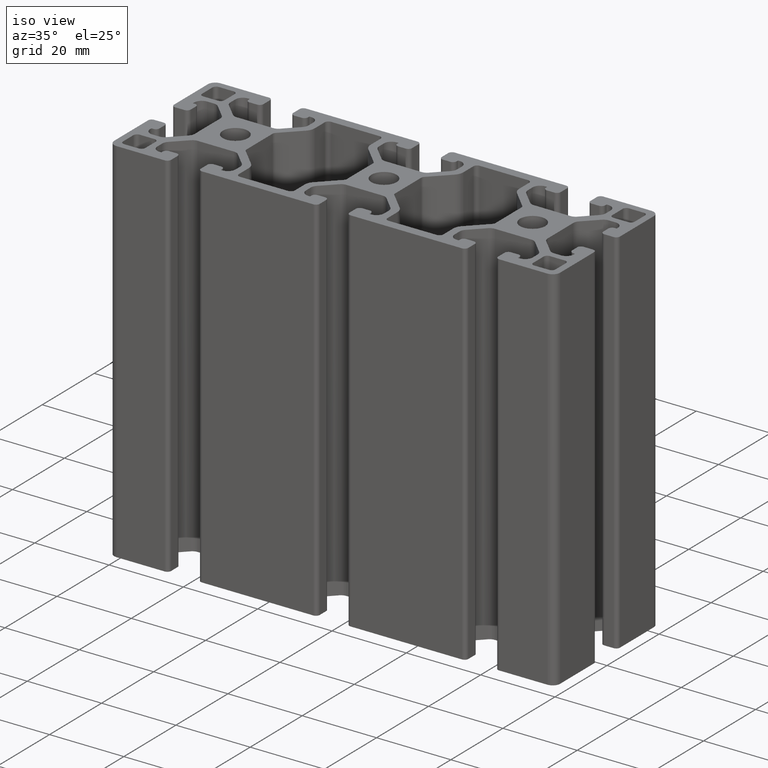
[diagram: clean part render]
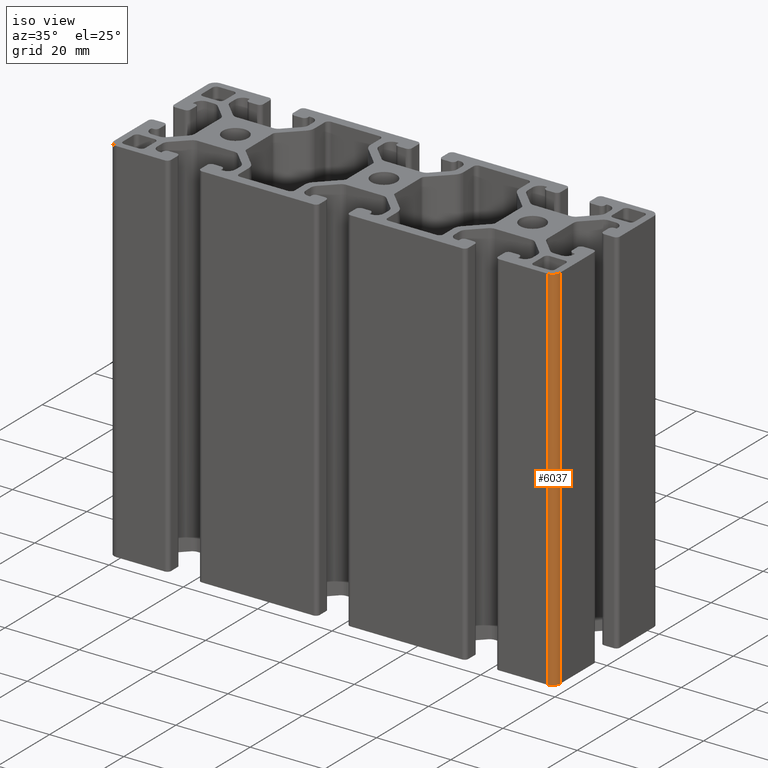
[diagram: same view with one face highlighted and labeled with its STEP entity id]
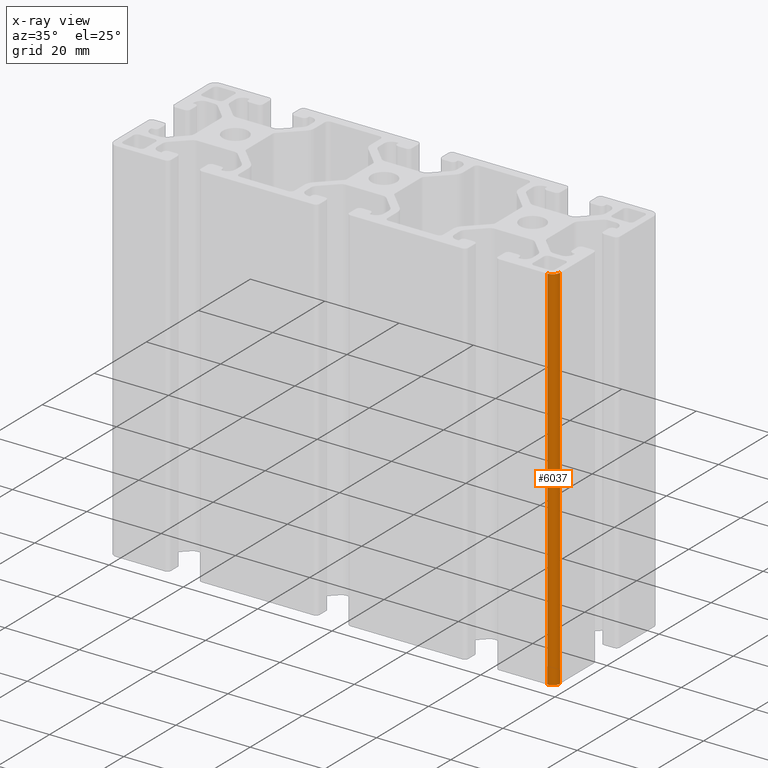
[diagram: x-ray of the same camera — body ghosted, the highlighted face saturated]
A machine part, iso view. The second image highlights one B-rep face of the part: STEP entity #6037.
The next image is the same camera in x-ray: the body ghosted, the highlighted face saturated — about 0% of this face is hidden behind the body in this view.
In plain terms, the highlighted cylindrical surface (edge-blend (fillet) strip) has radius 2 mm, axis along (0, 0, 1).
Its self-contained STEP definition (entity closure, byte-faithful):
#489=FACE_OUTER_BOUND('',#802,.T.);
#802=EDGE_LOOP('',(#5280,#5281,#5282,#5283));
#1397=LINE('',#10146,#2005);
#1400=LINE('',#10152,#2008);
#2005=VECTOR('',#8340,100.);
#2008=VECTOR('',#8345,100.);
#2311=CIRCLE('',#6618,2.00000000000001);
#2315=CIRCLE('',#6623,2.00000000000001);
#2903=VERTEX_POINT('',#10143);
#2904=VERTEX_POINT('',#10145);
#2905=VERTEX_POINT('',#10149);
#2906=VERTEX_POINT('',#10151);
#3775=EDGE_CURVE('',#2904,#2903,#1397,.T.);
#3778=EDGE_CURVE('',#2905,#2906,#1400,.T.);
#3800=EDGE_CURVE('',#2903,#2906,#2311,.T.);
#3805=EDGE_CURVE('',#2904,#2905,#2315,.T.);
#5280=ORIENTED_EDGE('',*,*,#3800,.T.);
#5281=ORIENTED_EDGE('',*,*,#3778,.F.);
#5282=ORIENTED_EDGE('',*,*,#3805,.F.);
#5283=ORIENTED_EDGE('',*,*,#3775,.T.);
#5738=CYLINDRICAL_SURFACE('',#6622,2.00000000000001);
#6037=ADVANCED_FACE('',(#489),#5738,.T.);
#6618=AXIS2_PLACEMENT_3D('',#10191,#8385,#8386);
#6622=AXIS2_PLACEMENT_3D('',#10197,#8394,#8395);
#6623=AXIS2_PLACEMENT_3D('',#10198,#8396,#8397);
#8340=DIRECTION('',(0.,0.,1.));
#8345=DIRECTION('',(0.,0.,1.));
#8385=DIRECTION('center_axis',(0.,0.,-1.));
#8386=DIRECTION('ref_axis',(0.,-1.,0.));
#8394=DIRECTION('center_axis',(0.,0.,1.));
#8395=DIRECTION('ref_axis',(0.,-1.,0.));
#8396=DIRECTION('center_axis',(0.,0.,-1.));
#8397=DIRECTION('ref_axis',(0.,-1.,0.));
#10143=CARTESIAN_POINT('',(60.,-18.,100.));
#10145=CARTESIAN_POINT('',(60.,-18.,0.));
#10146=CARTESIAN_POINT('',(60.,-18.,0.));
#10149=CARTESIAN_POINT('',(58.,-20.,0.));
#10151=CARTESIAN_POINT('',(58.,-20.,100.));
#10152=CARTESIAN_POINT('',(58.,-20.,0.));
#10191=CARTESIAN_POINT('Origin',(58.,-18.,100.));
#10197=CARTESIAN_POINT('Origin',(58.,-18.,0.));
#10198=CARTESIAN_POINT('Origin',(58.,-18.,0.));